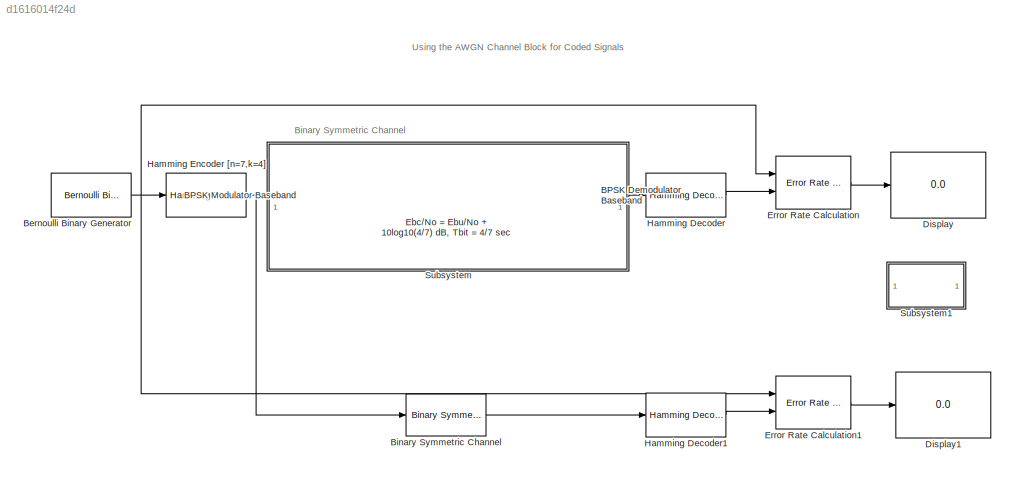
MODEL slx_d1616014f24d
KIND model
BLOCK [Reference] BPSK Demodulator Baseband  REF=commdigbbndpm3/BPSK
Demodulator
Baseband
  DecType = Hard decision
  Ph = 0
  Ports = [1, 1]
  SourceBlock = commdigbbndpm3/BPSK\nDemodulator\nBaseband
  SourceType = BPSK Demodulator Baseband
  VarSource = Dialog
  Variance = 1
  derotateFactorDTMode = Same word length as input
  derotateFactorWordLen = 16
  outDtype = double
BLOCK [Reference] BPSK Modulator Baseband  REF=commdigbbndpm3/BPSK
Modulator
Baseband
  Ph = 0
  Ports = [1, 1]
  SourceBlock = commdigbbndpm3/BPSK\nModulator\nBaseband
  SourceType = BPSK Modulator Baseband
  outDtype = double
  outFracLen = 15
  outFracLenMode = Best precision
  outUDDataType = sfix(16)
  outWordLen = 16
BLOCK [Reference] Bernoulli Binary Generator  REF=commrandsrc2/Bernoulli Binary
Generator
  P = 0.5
  Ports = [0, 1]
  SourceBlock = commrandsrc2/Bernoulli Binary\nGenerator
  SourceType = Bernoulli Binary Generator
  Ts = 1
  frameBased = on
  orient = off
  outDataType = double
  sampPerFrame = 4
  seed = randseed(61)
BLOCK [Reference] Binary Symmetric Channel  REF=commchan3/Binary Symmetric
Channel
  E = off
  P = qfunc(sqrt(2*10.^((8 + 10*log10(4/7))/10)))
  Ports = [1, 1]
  SourceBlock = commchan3/Binary Symmetric\nChannel
  SourceType = Binary Symmetric Channel
  outDtype = double
  s = 67
BLOCK [Display] Display
  Decimation = 1
  Ports = [1]
BLOCK [Display] Display1
  Decimation = 1
  Ports = [1]
BLOCK [Reference] Ebc//No = Ebu//No + 10log10(4//7) dB, Tbit = 4//7 sec  REF=commchan3/AWGN
Channel
  EbNodB = 8 + 10*log10(4/7)
  EsNodB = 6.75 + 10*log10(4/7)
  InputProcessing = Columns as channels (frame based)
  Ports = [1, 1]
  Ps = 1
  SNRdB = 10
  SourceBlock = commchan3/AWGN\nChannel
  SourceType = AWGN Channel
  Tsym = 4/7
  UserDataPersistent = on
  bitsPerSym = 1
  noiseMode = Signal to noise ratio  (Eb/No)
  seed = 67
  variance = 1
BLOCK [Reference] Error Rate Calculation  REF=commsink2/Error Rate
Calculation
  N = 0
  PMode = Port
  Ports = [2, 1]
  RsMode2 = off
  SourceBlock = commsink2/Error Rate\nCalculation
  SourceType = Error Rate Calculation
  WsName = ErrorVec
  cp_mode = Entire frame
  maxBits = 1e6
  numErr = 200
  st_delay = 0
  stop = on
  subframe = []
BLOCK [Reference] Error Rate Calculation1  REF=commsink2/Error Rate
Calculation
  N = 0
  PMode = Port
  Ports = [2, 1]
  RsMode2 = off
  SourceBlock = commsink2/Error Rate\nCalculation
  SourceType = Error Rate Calculation
  WsName = ErrorVec
  cp_mode = Entire frame
  maxBits = 1e6
  numErr = 200
  st_delay = 0
  stop = on
  subframe = []
BLOCK [Reference] Hamming Decoder  REF=commblkcod2/Hamming Decoder
  Ports = [1, 1]
  SourceBlock = commblkcod2/Hamming Decoder
  SourceType = Hamming Decoder
  k = 4
  n = 7
BLOCK [Reference] Hamming Decoder1  REF=commblkcod2/Hamming Decoder
  Ports = [1, 1]
  SourceBlock = commblkcod2/Hamming Decoder
  SourceType = Hamming Decoder
  k = 4
  n = 7
BLOCK [Reference] Hamming Encoder [n=7,k=4]  REF=commblkcod2/Hamming Encoder
  Ports = [1, 1]
  SourceBlock = commblkcod2/Hamming Encoder
  SourceType = Hamming Encoder
  k = 4
  n = 7
BLOCK [SubSystem] Subsystem
  Ports = []
  RequestExecContextInheritance = off
BLOCK [SubSystem] Subsystem1
  Ports = []
  RequestExecContextInheritance = off
ANNOTATION (root): Binary Symmetric Channel
ANNOTATION (root): Using the AWGN Channel Block for Coded Signals
ANNOTATION Subsystem1: This example shows the usage of the AWGN Channel block for a signal with error control coding. Both links are set for an uncoded Eb/No of 8 dB. In the top link, the AWGN channel block is set to provide a coded Eb/No of 8 + 10log10(4/7) dB, where 4/7 is the code rate. This accounts for the fact that the coded Eb/No is always lower (by a factor of the code rate) than the uncoded Eb/No. The blue shad...<+994ch>
LINE BPSK Demodulator Baseband:1 -> Hamming Decoder:1
LINE BPSK Modulator Baseband:1 -> Ebc//No = Ebu//No + 10log10(4//7) dB, Tbit = 4//7 sec:1
NET Bernoulli Binary Generator:1 -> Error Rate Calculation1:1, Error Rate Calculation:1, Hamming Encoder [n=7,k=4]:1
LINE Binary Symmetric Channel:1 -> Hamming Decoder1:1
LINE Ebc//No = Ebu//No + 10log10(4//7) dB, Tbit = 4//7 sec:1 -> BPSK Demodulator Baseband:1
LINE Error Rate Calculation1:1 -> Display1:1
LINE Error Rate Calculation:1 -> Display:1
LINE Hamming Decoder1:1 -> Error Rate Calculation1:2
LINE Hamming Decoder:1 -> Error Rate Calculation:2
NET Hamming Encoder [n=7,k=4]:1 -> BPSK Modulator Baseband:1, Binary Symmetric Channel:1
note: NET lines group one-source signal fan-out (src -> all destinations, sorted); 1:1 wires keep LINE
